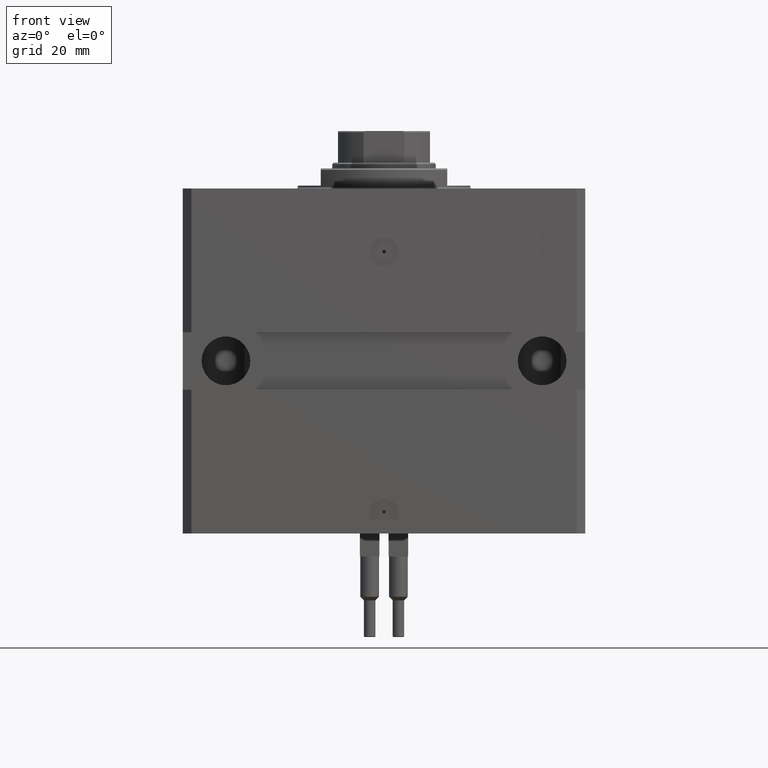
[diagram: clean part render]
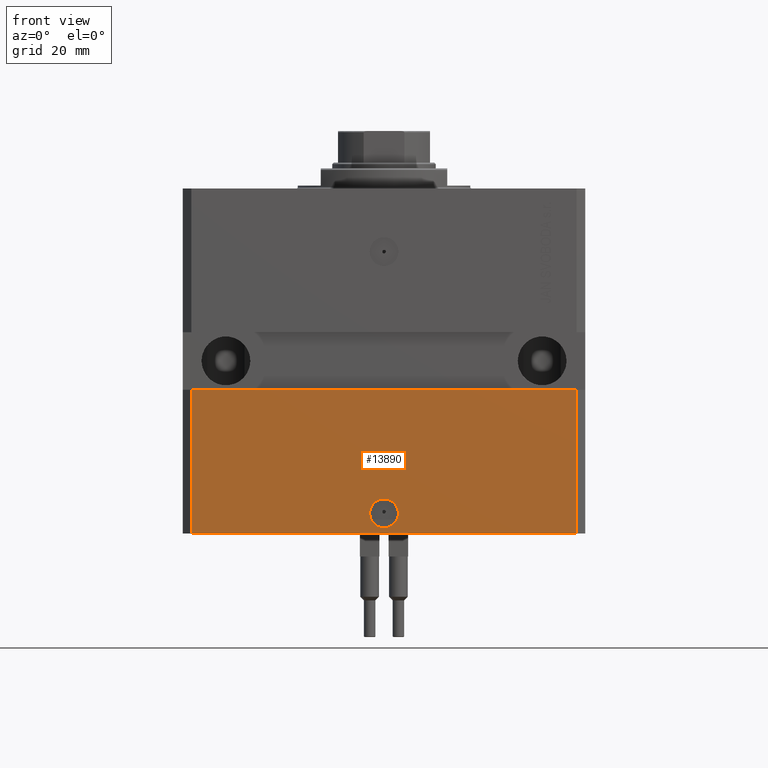
[diagram: same view with one face highlighted and labeled with its STEP entity id]
A machine part, front view. The second image highlights one B-rep face of the part: STEP entity #13890.
In plain terms, the highlighted planar face has unit normal (0, -1, 0).
Its self-contained STEP definition (entity closure, byte-faithful):
#739 = LINE ( 'NONE', #20057, #6542 ) ;
#1175 = CARTESIAN_POINT ( 'NONE',  ( 67.00000000000001421, -54.99999999999997868, -70.00000000000000000 ) ) ;
#1730 = CIRCLE ( 'NONE', #14553, 5.000000000000006217 ) ;
#2497 = DIRECTION ( 'NONE',  ( 1.553483709829976241E-16, -1.000000000000000000, 0.000000000000000000 ) ) ;
#2547 = ORIENTED_EDGE ( 'NONE', *, *, #45477, .T. ) ;
#2680 = CARTESIAN_POINT ( 'NONE',  ( 67.00000000000001421, -54.99999999999997868, -120.0000000000000000 ) ) ;
#6446 = EDGE_LOOP ( 'NONE', ( #34645, #29077 ) ) ;
#6542 = VECTOR ( 'NONE', #16053, 1000.000000000000000 ) ;
#6818 = CIRCLE ( 'NONE', #34835, 5.000000000000006217 ) ;
#9596 = LINE ( 'NONE', #12850, #38312 ) ;
#9937 = EDGE_CURVE ( 'NONE', #41091, #46033, #9596, .T. ) ;
#9971 = LINE ( 'NONE', #25731, #20089 ) ;
#10907 = DIRECTION ( 'NONE',  ( 1.000000000000000000, 0.000000000000000000, 0.000000000000000000 ) ) ;
#12850 = CARTESIAN_POINT ( 'NONE',  ( -67.00000000000001421, -55.00000000000000000, -120.0000000000000000 ) ) ;
#13890 = ADVANCED_FACE ( 'NONE', ( #41349, #14286 ), #29579, .T. ) ;
#14286 = FACE_OUTER_BOUND ( 'NONE', #30794, .T. ) ;
#14553 = AXIS2_PLACEMENT_3D ( 'NONE', #35397, #16592, #44838 ) ;
#14656 = CARTESIAN_POINT ( 'NONE',  ( 8.544160404064867231E-15, -54.99999999999998579, -112.9999999999999858 ) ) ;
#15500 = VERTEX_POINT ( 'NONE', #1175 ) ;
#15629 = EDGE_CURVE ( 'NONE', #46033, #15500, #9971, .T. ) ;
#16053 = DIRECTION ( 'NONE',  ( 1.000000000000000000, 1.553483709829976241E-16, 0.000000000000000000 ) ) ;
#16537 = EDGE_CURVE ( 'NONE', #41091, #25747, #739, .T. ) ;
#16592 = DIRECTION ( 'NONE',  ( 1.176083712526788232E-16, -1.000000000000000000, 0.000000000000000000 ) ) ;
#17983 = DIRECTION ( 'NONE',  ( 0.000000000000000000, 0.000000000000000000, 1.000000000000000000 ) ) ;
#19446 = VECTOR ( 'NONE', #17983, 1000.000000000000000 ) ;
#19517 = ORIENTED_EDGE ( 'NONE', *, *, #16537, .T. ) ;
#19665 = CARTESIAN_POINT ( 'NONE',  ( 5.000000000000015099, -54.99999999999998579, -112.9999999999999858 ) ) ;
#19894 = VERTEX_POINT ( 'NONE', #36781 ) ;
#20057 = CARTESIAN_POINT ( 'NONE',  ( -67.00000000000001421, -55.00000000000000000, -120.0000000000000000 ) ) ;
#20089 = VECTOR ( 'NONE', #40789, 1000.000000000000000 ) ;
#21542 = VERTEX_POINT ( 'NONE', #19665 ) ;
#23712 = ORIENTED_EDGE ( 'NONE', *, *, #15629, .F. ) ;
#25731 = CARTESIAN_POINT ( 'NONE',  ( -70.00000000000001421, -54.99999999999999289, -70.00000000000000000 ) ) ;
#25747 = VERTEX_POINT ( 'NONE', #39893 ) ;
#26469 = LINE ( 'NONE', #2680, #19446 ) ;
#28184 = CARTESIAN_POINT ( 'NONE',  ( -67.00000000000001421, -55.00000000000000000, -120.0000000000000000 ) ) ;
#28594 = EDGE_CURVE ( 'NONE', #21542, #19894, #6818, .T. ) ;
#29077 = ORIENTED_EDGE ( 'NONE', *, *, #42573, .F. ) ;
#29579 = PLANE ( 'NONE',  #30430 ) ;
#30072 = DIRECTION ( 'NONE',  ( 1.000000000000000000, 1.553483709829976241E-16, 0.000000000000000000 ) ) ;
#30430 = AXIS2_PLACEMENT_3D ( 'NONE', #44870, #2497, #30072 ) ;
#30794 = EDGE_LOOP ( 'NONE', ( #23712, #43599, #19517, #2547 ) ) ;
#34645 = ORIENTED_EDGE ( 'NONE', *, *, #28594, .F. ) ;
#34835 = AXIS2_PLACEMENT_3D ( 'NONE', #14656, #41469, #10907 ) ;
#35397 = CARTESIAN_POINT ( 'NONE',  ( 8.544160404064867231E-15, -54.99999999999998579, -112.9999999999999858 ) ) ;
#35421 = DIRECTION ( 'NONE',  ( 0.000000000000000000, 0.000000000000000000, 1.000000000000000000 ) ) ;
#36781 = CARTESIAN_POINT ( 'NONE',  ( -4.999999999999997335, -54.99999999999998579, -112.9999999999999858 ) ) ;
#38312 = VECTOR ( 'NONE', #35421, 1000.000000000000000 ) ;
#39893 = CARTESIAN_POINT ( 'NONE',  ( 67.00000000000001421, -54.99999999999997868, -120.0000000000000000 ) ) ;
#40789 = DIRECTION ( 'NONE',  ( 1.000000000000000000, 9.912705577010323084E-17, 0.000000000000000000 ) ) ;
#41091 = VERTEX_POINT ( 'NONE', #28184 ) ;
#41349 = FACE_BOUND ( 'NONE', #6446, .T. ) ;
#41469 = DIRECTION ( 'NONE',  ( 1.176083712526788232E-16, -1.000000000000000000, 0.000000000000000000 ) ) ;
#42573 = EDGE_CURVE ( 'NONE', #19894, #21542, #1730, .T. ) ;
#42997 = CARTESIAN_POINT ( 'NONE',  ( -67.00000000000002842, -54.99999999999999289, -70.00000000000000000 ) ) ;
#43599 = ORIENTED_EDGE ( 'NONE', *, *, #9937, .F. ) ;
#44838 = DIRECTION ( 'NONE',  ( 1.000000000000000000, 0.000000000000000000, 0.000000000000000000 ) ) ;
#44870 = CARTESIAN_POINT ( 'NONE',  ( -67.00000000000001421, -55.00000000000000000, -120.0000000000000000 ) ) ;
#45477 = EDGE_CURVE ( 'NONE', #25747, #15500, #26469, .T. ) ;
#46033 = VERTEX_POINT ( 'NONE', #42997 ) ;